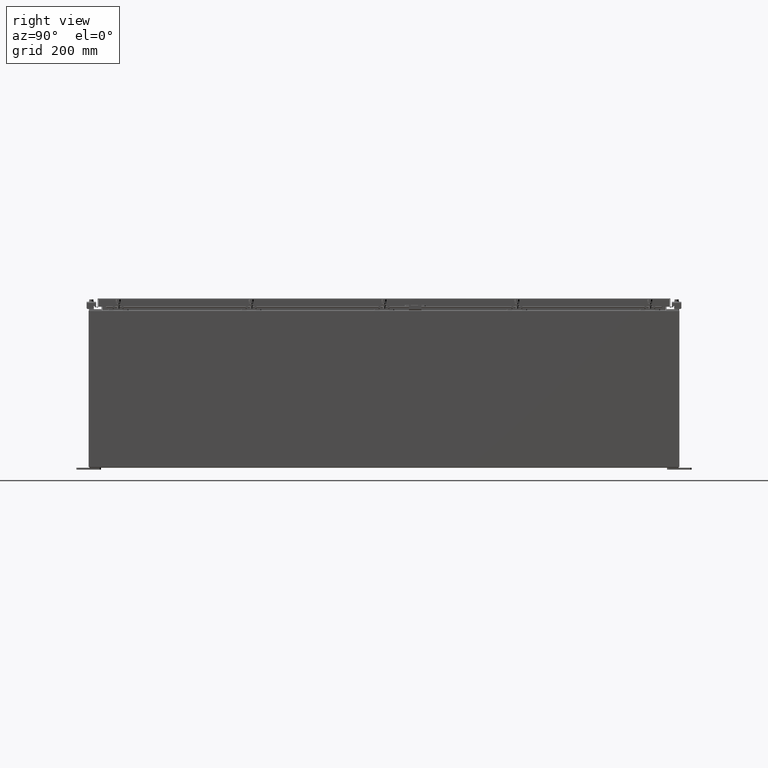
[diagram: clean part render]
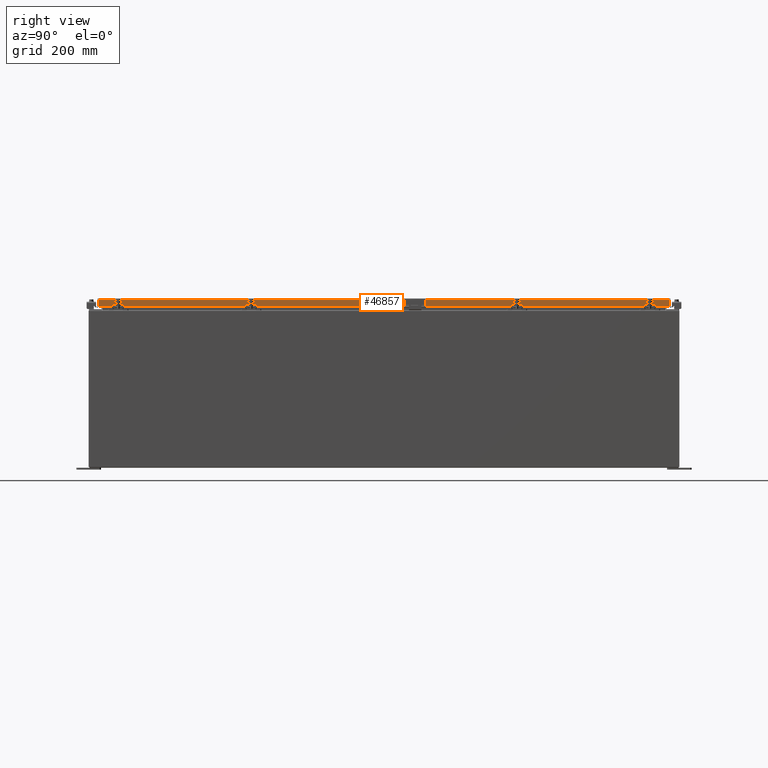
[diagram: same view with one face highlighted and labeled with its STEP entity id]
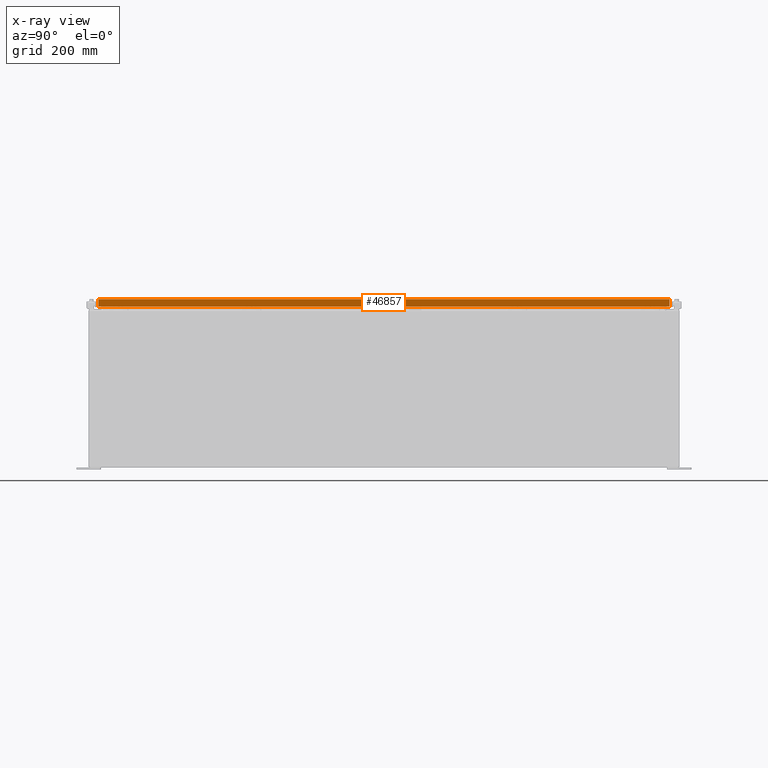
[diagram: x-ray of the same camera — body ghosted, the highlighted face saturated]
A machine part, right view. The second image highlights one B-rep face of the part: STEP entity #46857.
The next image is the same camera in x-ray: the body ghosted, the highlighted face saturated — about 0% of this face is hidden behind the body in this view.
In plain terms, the highlighted planar face has unit normal (1, 0, 0).
Its self-contained STEP definition (entity closure, byte-faithful):
#719 = VERTEX_POINT ( 'NONE', #33792 ) ;
#2609 = CARTESIAN_POINT ( 'NONE',  ( 17.07800000000000700, -29.09400000000000100, -0.8499999999999996400 ) ) ;
#3310 = LINE ( 'NONE', #35619, #53514 ) ;
#3627 = FACE_OUTER_BOUND ( 'NONE', #42932, .T. ) ;
#3959 = LINE ( 'NONE', #28502, #55682 ) ;
#4141 = PLANE ( 'NONE',  #52261 ) ;
#7610 = VECTOR ( 'NONE', #14014, 39.37007874015748100 ) ;
#7996 = CARTESIAN_POINT ( 'NONE',  ( 17.07800000000000700, -29.09400000000000100, -0.8499999999999996400 ) ) ;
#8221 = LINE ( 'NONE', #7996, #34079 ) ;
#8971 = CARTESIAN_POINT ( 'NONE',  ( 17.07800000000000300, 29.00515786437626500, -0.08770000000000007000 ) ) ;
#9020 = EDGE_CURVE ( 'NONE', #34424, #719, #59297, .T. ) ;
#12870 = EDGE_CURVE ( 'NONE', #48720, #28368, #3959, .T. ) ;
#13902 = DIRECTION ( 'NONE',  ( 2.818880942772360100E-015, 0.0000000000000000000, -1.000000000000000000 ) ) ;
#14014 = DIRECTION ( 'NONE',  ( -2.818880942772360100E-015, -6.982962677686265900E-015, 1.000000000000000000 ) ) ;
#14266 = EDGE_CURVE ( 'NONE', #28368, #34424, #52443, .T. ) ;
#18029 = EDGE_CURVE ( 'NONE', #23933, #22444, #3310, .T. ) ;
#18895 = CARTESIAN_POINT ( 'NONE',  ( 17.07800000000000300, -29.00515786437626500, -0.07469999999999978000 ) ) ;
#20542 = ORIENTED_EDGE ( 'NONE', *, *, #50606, .T. ) ;
#21454 = CARTESIAN_POINT ( 'NONE',  ( 17.07800000000000700, -29.00515786437626200, -0.8499999999999996400 ) ) ;
#22444 = VERTEX_POINT ( 'NONE', #8971 ) ;
#22798 = VECTOR ( 'NONE', #34983, 39.37007874015748100 ) ;
#23933 = VERTEX_POINT ( 'NONE', #55535 ) ;
#28368 = VERTEX_POINT ( 'NONE', #37360 ) ;
#28502 = CARTESIAN_POINT ( 'NONE',  ( 17.07799999999999600, 28.25515786437627600, -0.8500000000000016400 ) ) ;
#29417 = ORIENTED_EDGE ( 'NONE', *, *, #9020, .F. ) ;
#29443 = CARTESIAN_POINT ( 'NONE',  ( 17.07799999999999600, 28.25515786437626200, -0.8500000000000016400 ) ) ;
#33792 = CARTESIAN_POINT ( 'NONE',  ( 17.07800000000000300, -29.00515786437626500, -0.08770000000000007000 ) ) ;
#34079 = VECTOR ( 'NONE', #37099, 39.37007874015748100 ) ;
#34194 = LINE ( 'NONE', #54326, #22798 ) ;
#34424 = VERTEX_POINT ( 'NONE', #21454 ) ;
#34983 = DIRECTION ( 'NONE',  ( 0.0000000000000000000, -1.000000000000000000, 0.0000000000000000000 ) ) ;
#35619 = CARTESIAN_POINT ( 'NONE',  ( 17.07800000000000300, 29.00515786437626500, 2.509435972240157400E-013 ) ) ;
#36839 = DIRECTION ( 'NONE',  ( 0.0000000000000000000, -1.000000000000000000, 0.0000000000000000000 ) ) ;
#37099 = DIRECTION ( 'NONE',  ( 0.0000000000000000000, -1.000000000000000000, 0.0000000000000000000 ) ) ;
#37360 = CARTESIAN_POINT ( 'NONE',  ( 17.07799999999999600, -28.25515786437625800, -0.8500000000000016400 ) ) ;
#38049 = DIRECTION ( 'NONE',  ( 0.0000000000000000000, -1.000000000000000000, 0.0000000000000000000 ) ) ;
#38144 = CARTESIAN_POINT ( 'NONE',  ( 17.07800000000000300, 0.0000000000000000000, 4.840166239667796000E-014 ) ) ;
#39023 = ORIENTED_EDGE ( 'NONE', *, *, #18029, .T. ) ;
#42932 = EDGE_LOOP ( 'NONE', ( #29417, #48608, #61086, #43093, #39023, #20542 ) ) ;
#43042 = DIRECTION ( 'NONE',  ( 1.000000000000000000, 0.0000000000000000000, 2.818880942772360100E-015 ) ) ;
#43093 = ORIENTED_EDGE ( 'NONE', *, *, #46740, .F. ) ;
#46740 = EDGE_CURVE ( 'NONE', #23933, #48720, #8221, .T. ) ;
#46857 = ADVANCED_FACE ( 'NONE', ( #3627 ), #4141, .T. ) ;
#48608 = ORIENTED_EDGE ( 'NONE', *, *, #14266, .F. ) ;
#48720 = VERTEX_POINT ( 'NONE', #29443 ) ;
#50280 = DIRECTION ( 'NONE',  ( -2.818880942772360100E-015, -6.982962677686265900E-015, 1.000000000000000000 ) ) ;
#50606 = EDGE_CURVE ( 'NONE', #22444, #719, #34194, .T. ) ;
#50919 = VECTOR ( 'NONE', #36839, 39.37007874015748100 ) ;
#52261 = AXIS2_PLACEMENT_3D ( 'NONE', #38144, #43042, #13902 ) ;
#52443 = LINE ( 'NONE', #2609, #50919 ) ;
#53514 = VECTOR ( 'NONE', #50280, 39.37007874015748100 ) ;
#54326 = CARTESIAN_POINT ( 'NONE',  ( 17.07800000000000300, 0.0000000000000000000, -0.08770000000000007000 ) ) ;
#55535 = CARTESIAN_POINT ( 'NONE',  ( 17.07800000000000700, 29.00515786437627200, -0.8499999999999996400 ) ) ;
#55682 = VECTOR ( 'NONE', #38049, 39.37007874015748100 ) ;
#59297 = LINE ( 'NONE', #18895, #7610 ) ;
#61086 = ORIENTED_EDGE ( 'NONE', *, *, #12870, .F. ) ;